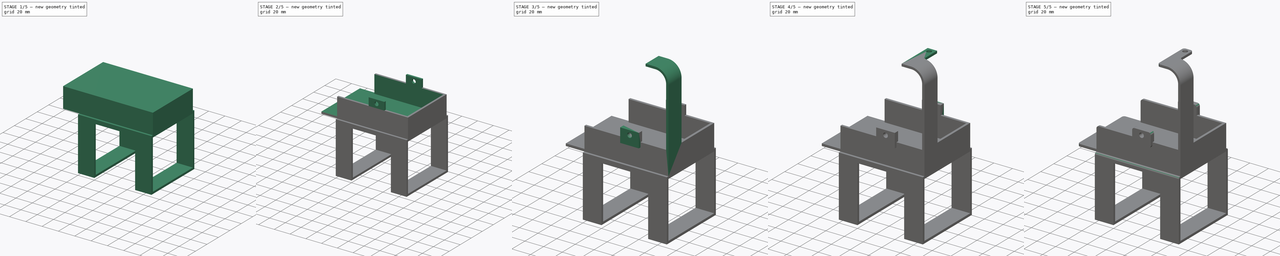
[diagram: build sequence overview — one tinted view per stage of 5, left to right]
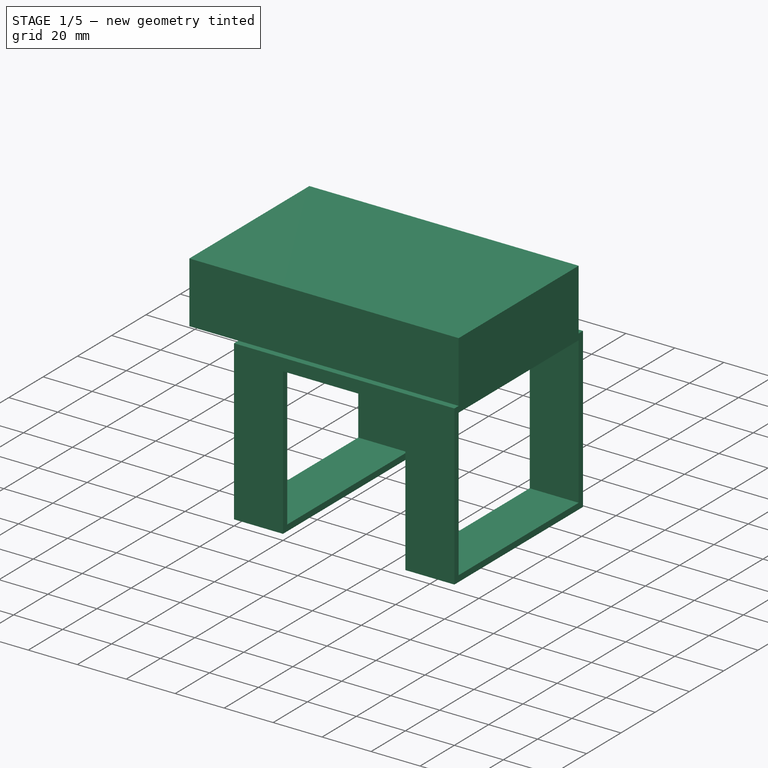
[diagram: stage 1 of 5 — iso view after this stage's code; geometry added in this stage tinted green]
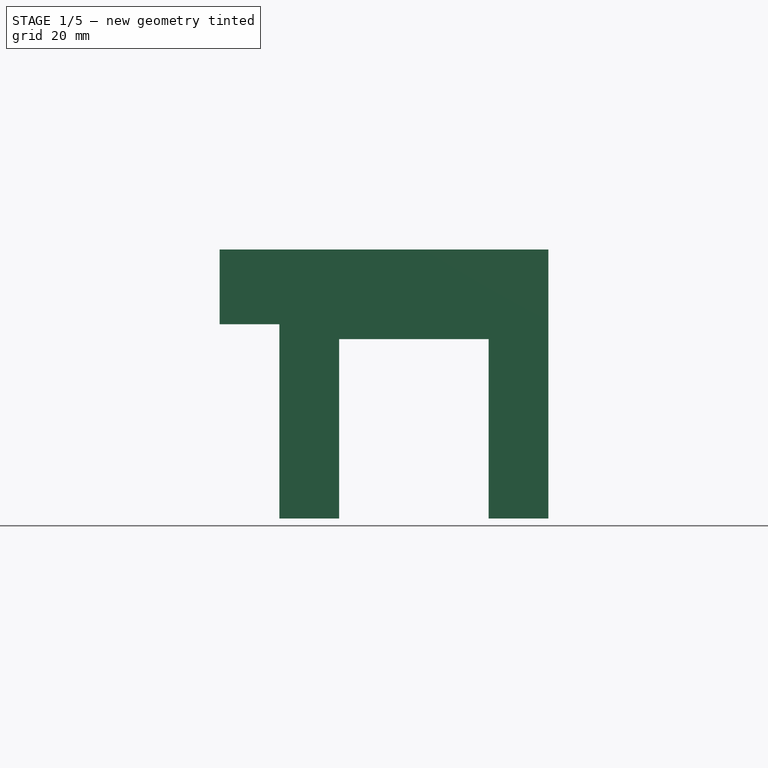
[diagram: stage 1 of 5 — front view after this stage's code; geometry added in this stage tinted green]
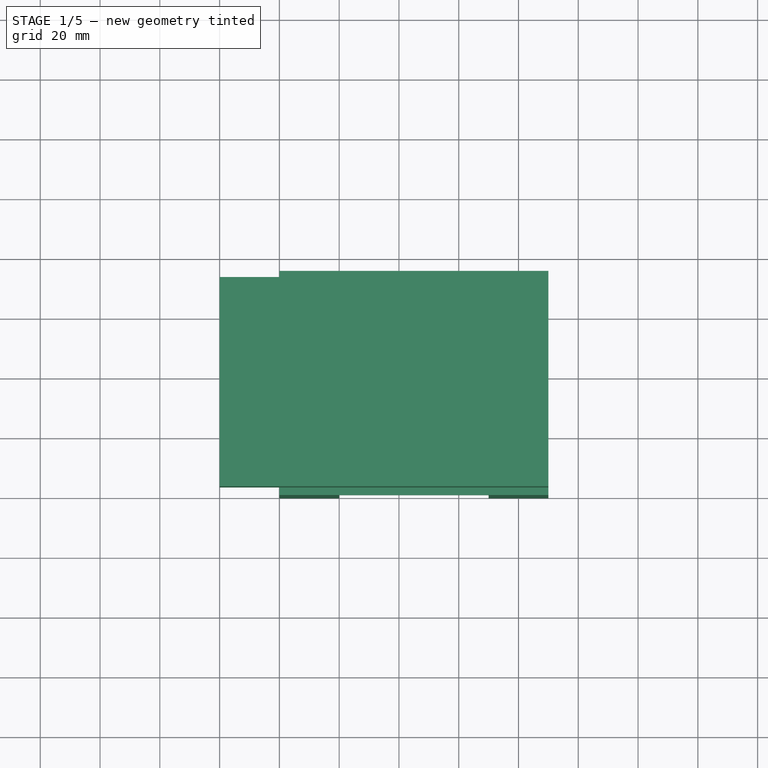
[diagram: stage 1 of 5 — top view after this stage's code; geometry added in this stage tinted green]
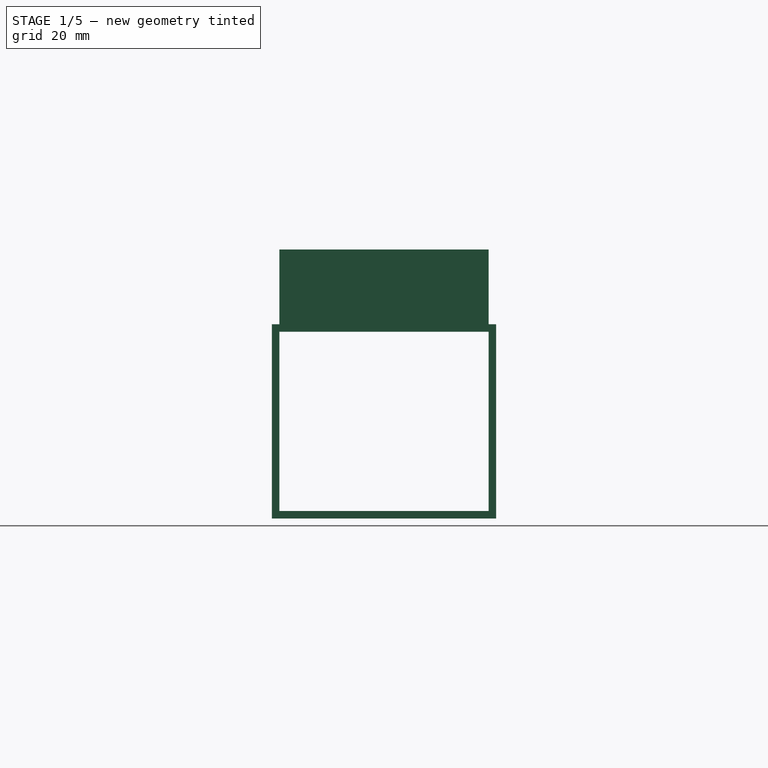
[diagram: stage 1 of 5 — right view after this stage's code; geometry added in this stage tinted green]
FCSTD DOCUMENT  (FreeCAD 1.0R39109 (Git))
Label: Gerüst-DerGerät
License: All rights reserved
LicenseURL: https://en.wikipedia.org/wiki/All_rights_reserved
objects: Sketcher::SketchObject×14, PartDesign::Pad×7, PartDesign::Pocket×7, PartDesign::Fillet×5, PartDesign::Body×1
note: 86 computed .brp shape members not serialized (recipe doc carries the construction recipe); baked Part::Feature solids carry a one-line shape summary decoded from their .brp

FEATURE [Sketcher::SketchObject] Sketch
  ArcFitTolerance = 1e-06
  AttachmentSupport = -> [YZ_Plane]
  FullyConstrained = true
  MakeInternals = false
  MapMode = 5
  Placement = pos=(0,0,0) rot=(0.57735,0.57735,0.57735;2.0944rad)
  sketch-geometry (4):
    g0: LineSegment StartX=0 StartY=0 StartZ=0 EndX=75 EndY=0 EndZ=0
    g1: LineSegment StartX=75 StartY=0 StartZ=0 EndX=75 EndY=65 EndZ=0
    g2: LineSegment StartX=75 StartY=65 StartZ=0 EndX=0 EndY=65 EndZ=0
    g3: LineSegment StartX=0 StartY=65 StartZ=0 EndX=0 EndY=0 EndZ=0
  constraints (11):
    c: Coincident(g-1,g0)
    c: PointOnObject(g0,g-1)
    c: Coincident(g0,g1)
    c: Vertical(g1)
    c: Coincident(g1,g2)
    c: PointOnObject(g2,g-2)
    c: Horizontal(g2)
    c: Coincident(g2,g3)
    c: Coincident(g3,g0)
    c: DistanceX(g0,g0) = 75
    c: DistanceY(g3,g3) = 65
FEATURE [PartDesign::Pad] Pad  label="Anfangsklotz"
  Direction = (1,0,0)
  Length = 90
  Length2 = 10
  Placement = pos=(0,0,0) rot=(1,1,1;2.0944rad)
  Profile = -> Sketch
  ReferenceAxis = -> Sketch [N_Axis]
  Refine = true
  Suppressed = false
  Type = 0
FEATURE [Sketcher::SketchObject] Sketch001
  ArcFitTolerance = 1e-06
  AttachmentSupport = -> [Pad]
  FullyConstrained = true
  MakeInternals = false
  MapMode = 5
  Placement = pos=(0,0,0) rot=(0.57735,0.57735,-0.57735;2.0944rad)
  sketch-geometry (4):
    g0: LineSegment StartX=0 StartY=20 StartZ=0 EndX=-60 EndY=20 EndZ=0
    g1: LineSegment StartX=-60 StartY=20 StartZ=0 EndX=-60 EndY=70 EndZ=0
    g2: LineSegment StartX=-60 StartY=70 StartZ=0 EndX=0 EndY=70 EndZ=0
    g3: LineSegment StartX=0 StartY=70 StartZ=0 EndX=0 EndY=20 EndZ=0
  constraints (12):
    c: PointOnObject(g0,g-2)
    c: Horizontal(g0)
    c: Coincident(g0,g1)
    c: Vertical(g1)
    c: Coincident(g1,g2)
    c: PointOnObject(g2,g-2)
    c: Horizontal(g2)
    c: Coincident(g2,g3)
    c: Coincident(g3,g0)
    c: DistanceY(g3,g3) = 50
    c: DistanceX(g2,g2) = 60
    c: Distance(g-1,g0) = 20
FEATURE [PartDesign::Pocket] Pocket  label="1. Ausschnitt"
  BaseFeature = -> Pad
  Direction = (0,1,0)
  Length = 5
  Length2 = 5
  Placement = pos=(0,0,0) rot=(1,1,1;2.0944rad)
  Profile = -> Sketch001
  ReferenceAxis = -> Sketch001 [N_Axis]
  Refine = true
  Suppressed = false
  Type = 1
FEATURE [Sketcher::SketchObject] Sketch002
  ArcFitTolerance = 1e-06
  AttachmentSupport = -> [Pocket]
  FullyConstrained = true
  MakeInternals = false
  MapMode = 5
  Placement = pos=(0,0,0) rot=(0.57735,0.57735,-0.57735;4.18879rad)
  sketch-geometry (4):
    g0: LineSegment StartX=2.5 StartY=-2.5 StartZ=0 EndX=2.5 EndY=-62.5 EndZ=0
    g1: LineSegment StartX=2.5 StartY=-62.5 StartZ=0 EndX=72.5 EndY=-62.5 EndZ=0
    g2: LineSegment StartX=72.5 StartY=-62.5 StartZ=0 EndX=72.5 EndY=-2.5 EndZ=0
    g3: LineSegment StartX=72.5 StartY=-2.5 StartZ=0 EndX=2.5 EndY=-2.5 EndZ=0
  constraints (12):
    c: Vertical(g0)
    c: Coincident(g0,g1)
    c: Horizontal(g1)
    c: Coincident(g1,g2)
    c: Vertical(g2)
    c: Coincident(g2,g3)
    c: Coincident(g3,g0)
    c: Horizontal(g3)
    c: DistanceX(g3,g3) = 70
    c: DistanceY(g2,g2) = 60
    c: Distance(g-2,g0) = 2.5
    c: Distance(g-1,g3) = 2.5
FEATURE [PartDesign::Pocket] Pocket001  label="2. Ausschnitt"
  BaseFeature = -> Pocket
  Direction = (1,0,0)
  Length = 5
  Length2 = 5
  Placement = pos=(0,0,0) rot=(1,1,1;2.0944rad)
  Profile = -> Sketch002
  ReferenceAxis = -> Sketch002 [N_Axis]
  Refine = true
  Suppressed = false
  Type = 1
FEATURE [Sketcher::SketchObject] Sketch003
  ArcFitTolerance = 1e-06
  AttachmentSupport = -> [Pocket001]
  FullyConstrained = true
  MakeInternals = false
  MapMode = 5
  Placement = pos=(0,1.43e-14,65) rot=(0,0,-1;1.5708rad)
  sketch-geometry (4):
    g0: LineSegment StartX=-72.5 StartY=-20 StartZ=0 EndX=-72.5 EndY=90 EndZ=0
    g1: LineSegment StartX=-72.5 StartY=90 StartZ=0 EndX=-2.5 EndY=90 EndZ=0
    g2: LineSegment StartX=-2.5 StartY=90 StartZ=0 EndX=-2.5 EndY=-20 EndZ=0
    g3: LineSegment StartX=-2.5 StartY=-20 StartZ=0 EndX=-72.5 EndY=-20 EndZ=0
  constraints (12):
    c: Vertical(g0)
    c: Coincident(g0,g1)
    c: Horizontal(g1)
    c: Coincident(g1,g2)
    c: Vertical(g2)
    c: Coincident(g2,g3)
    c: Coincident(g3,g0)
    c: Horizontal(g3)
    c: DistanceY(g2,g2) = 110
    c: DistanceX(g3,g3) = 70
    c: Distance(g-1,g3) = 20
    c: Distance(g-1,g2) = 2.5
FEATURE [PartDesign::Pad] Pad001  label="Kartenhalter"
  BaseFeature = -> Pocket001
  Direction = (0,0,1)
  Length = 25
  Length2 = 10
  Placement = pos=(0,0,0) rot=(1,1,1;2.0944rad)
  Profile = -> Sketch003
  ReferenceAxis = -> Sketch003 [N_Axis]
  Refine = true
  Suppressed = false
  Type = 0
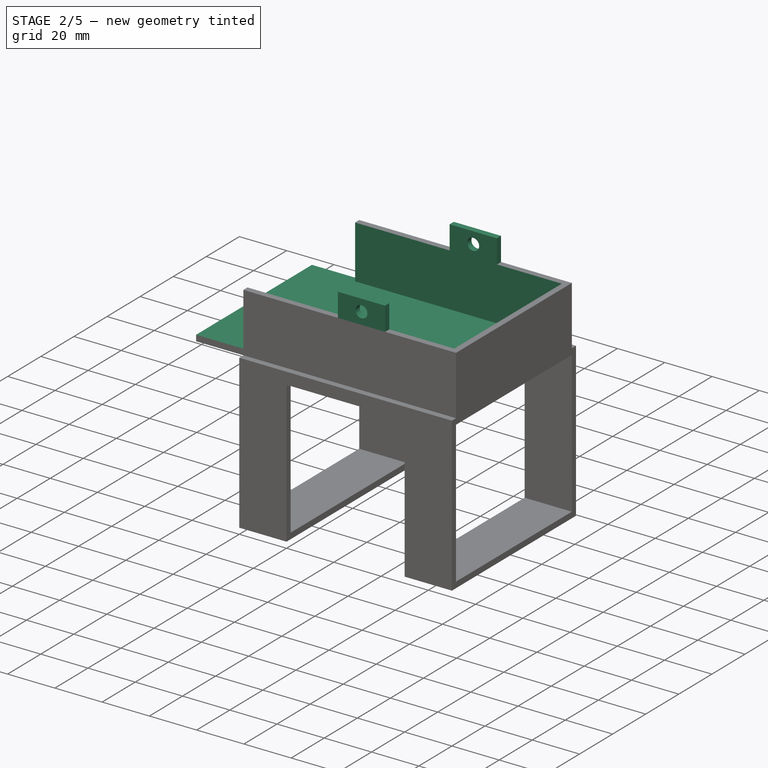
[diagram: stage 2 of 5 — iso view after this stage's code; geometry added in this stage tinted green]
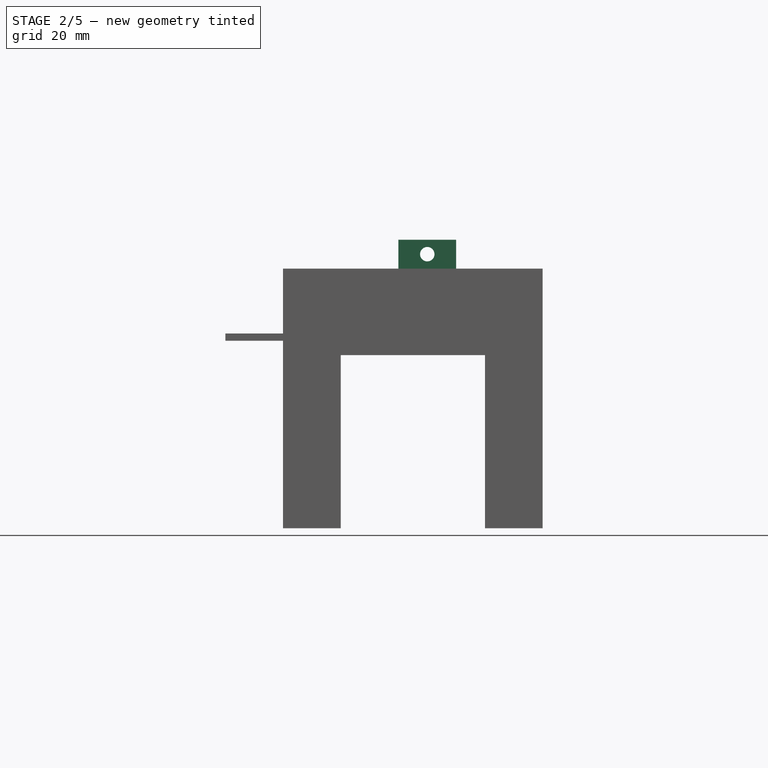
[diagram: stage 2 of 5 — front view after this stage's code; geometry added in this stage tinted green]
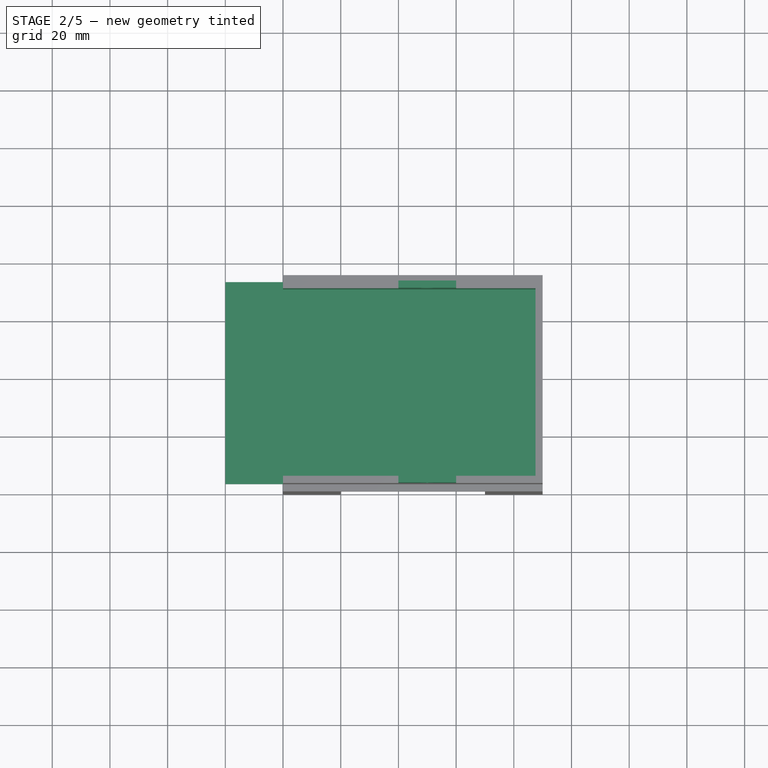
[diagram: stage 2 of 5 — top view after this stage's code; geometry added in this stage tinted green]
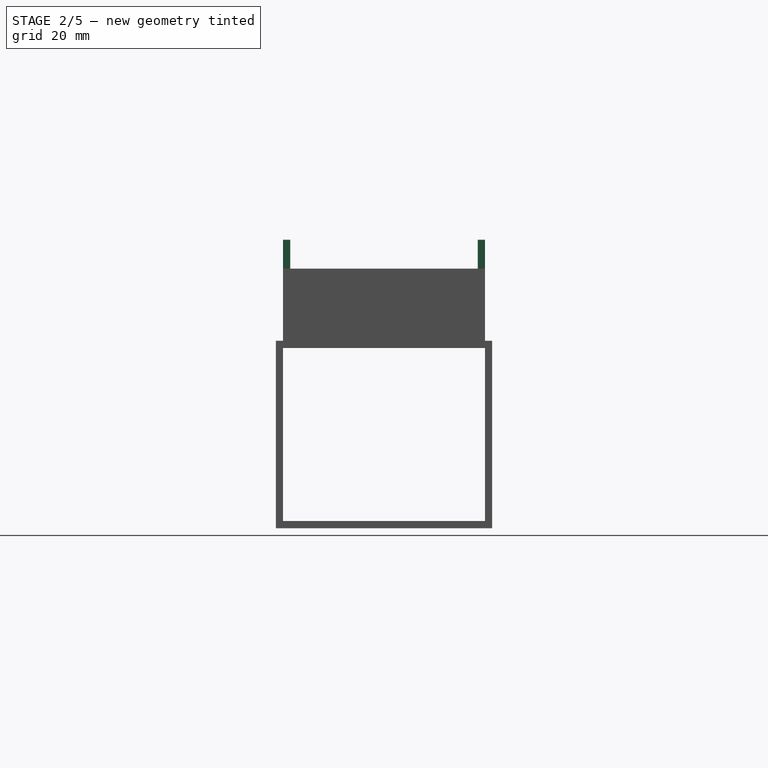
[diagram: stage 2 of 5 — right view after this stage's code; geometry added in this stage tinted green]
FEATURE [Sketcher::SketchObject] Sketch004
  ArcFitTolerance = 1e-06
  AttachmentSupport = -> [Pad001]
  FullyConstrained = true
  MakeInternals = false
  MapMode = 5
  Placement = pos=(0,0,90) rot=(0,0,-1;1.5708rad)
  sketch-geometry (4):
    g0: LineSegment StartX=-70 StartY=87.5 StartZ=0 EndX=-5 EndY=87.5 EndZ=0
    g1: LineSegment StartX=-5 StartY=87.5 StartZ=0 EndX=-5 EndY=-20 EndZ=0
    g2: LineSegment StartX=-5 StartY=-20 StartZ=0 EndX=-70 EndY=-20 EndZ=0
    g3: LineSegment StartX=-70 StartY=-20 StartZ=0 EndX=-70 EndY=87.5 EndZ=0
  constraints (12):
    c: Horizontal(g0)
    c: Coincident(g0,g1)
    c: Vertical(g1)
    c: Coincident(g1,g2)
    c: Horizontal(g2)
    c: Coincident(g2,g3)
    c: Coincident(g3,g0)
    c: Vertical(g3)
    c: DistanceY(g1,g1) = 107.5
    c: DistanceY(g1,g-1) = 20
    c: DistanceX(g2,g2) = 65
    c: Distance(g1,g-2) = 5
FEATURE [PartDesign::Pocket] Pocket002  label="1.Ausschnitt"
  BaseFeature = -> Pad001
  Direction = (0,0,-1)
  Length = 22.5
  Length2 = 5
  Placement = pos=(0,0,0) rot=(1,1,1;2.0944rad)
  Profile = -> Sketch004
  ReferenceAxis = -> Sketch004 [N_Axis]
  Refine = true
  Suppressed = false
  Type = 0
FEATURE [Sketcher::SketchObject] Sketch007
  ArcFitTolerance = 1e-06
  FullyConstrained = true
  MakeInternals = false
  MapMode = 5
  Placement = pos=(-1.155e-13,5.77e-14,65) rot=(0,0,-1;1.5708rad)
  sketch-geometry (8):
    g0: LineSegment StartX=-5 StartY=60 StartZ=0 EndX=-5 EndY=40 EndZ=0
    g1: LineSegment StartX=-70 StartY=60 StartZ=0 EndX=-72.5 EndY=60 EndZ=0
    g2: LineSegment StartX=-72.5 StartY=60 StartZ=0 EndX=-72.5 EndY=40 EndZ=0
    g3: LineSegment StartX=-72.5 StartY=40 StartZ=0 EndX=-70 EndY=40 EndZ=0
    g4: LineSegment StartX=-70 StartY=40 StartZ=0 EndX=-70 EndY=60 EndZ=0
    g5: LineSegment StartX=-5 StartY=60 StartZ=0 EndX=-2.5 EndY=60 EndZ=0
    g6: LineSegment StartX=-2.5 StartY=60 StartZ=0 EndX=-2.5 EndY=40 EndZ=0
    g7: LineSegment StartX=-2.5 StartY=40 StartZ=0 EndX=-5 EndY=40 EndZ=0
  constraints (24):
    c: Vertical(g0)
    c: Coincident(g1,g2)
    c: Vertical(g2)
    c: Coincident(g2,g3)
    c: Horizontal(g3)
    c: Coincident(g3,g4)
    c: Coincident(g4,g1)
    c: Vertical(g4)
    c: DistanceY(g0,g0) = 20
    c: DistanceX(g1,g1) = 2.5
    c: DistanceY(g2,g2) = 20
    c: Distance(g0,g4) = 65
    c: Coincident(g0,g5)
    c: Horizontal(g5)
    c: Coincident(g5,g6)
    c: Vertical(g6)
    c: Coincident(g6,g7)
    c: Coincident(g7,g0)
    c: Horizontal(g7)
    c: Distance(g5,g5) = 2.5
    c: Distance(g-2,g0) = 5
    c: DistanceY(g-1,g0) = 40
    c: Distance(g-1,g3) = 40
    c: Horizontal(g1)
FEATURE [PartDesign::Pad] Pad002  label="Motor-erhöhung"
  BaseFeature = -> Pocket002
  Direction = (-1.8e-15,0,1)
  Length = 35
  Length2 = 10
  Placement = pos=(0,0,0) rot=(1,1,1;2.0944rad)
  Profile = -> Sketch007
  ReferenceAxis = -> Sketch007 [N_Axis]
  Refine = true
  Suppressed = false
  Type = 0
FEATURE [Sketcher::SketchObject] Sketch008
  ArcFitTolerance = 1e-06
  AttachmentSupport = -> [Pad002]
  ExternalGeometry = -> [Pad002]
  FullyConstrained = true
  MakeInternals = false
  MapMode = 5
  Placement = pos=(1.65e-14,75,0) rot=(0.57735,0.57735,0.57735;4.18879rad)
  sketch-geometry (2):
    g0: Circle CenterX=95 CenterY=50 CenterZ=0 NormalX=0 NormalY=0 NormalZ=1 AngleXU=0 Radius=2.5
    g1: LineSegment [constr] StartX=90 StartY=60 StartZ=0 EndX=100 EndY=40 EndZ=0
  constraints (4):
    c: Diameter(g0) = 5
    c: Coincident(g1,g-3)
    c: Coincident(g1,g-4)
    c: Symmetric(g1,g1,g0)
FEATURE [PartDesign::Pocket] Pocket004  label="Motor-LochInErhöhung"
  BaseFeature = -> Pad002
  Direction = (0,-1,0)
  Length = 5
  Length2 = 5
  Placement = pos=(0,0,0) rot=(1,1,1;2.0944rad)
  Profile = -> Sketch008
  ReferenceAxis = -> Sketch008 [N_Axis]
  Refine = true
  Suppressed = false
  Type = 1
FEATURE [Sketcher::SketchObject] Sketch009
  ArcFitTolerance = 1e-06
  AttachmentSupport = -> [Pocket004]
  FullyConstrained = true
  MakeInternals = false
  MapMode = 5
  Placement = pos=(0,2.5,0) rot=(0.57735,0.57735,-0.57735;2.0944rad)
  sketch-geometry (4):
    g0: LineSegment StartX=-90 StartY=0 StartZ=0 EndX=-67.5 EndY=0 EndZ=0
    g1: LineSegment StartX=-67.5 StartY=0 StartZ=0 EndX=-67.5 EndY=-20 EndZ=0
    g2: LineSegment StartX=-67.5 StartY=-20 StartZ=0 EndX=-90 EndY=-20 EndZ=0
    g3: LineSegment StartX=-90 StartY=-20 StartZ=0 EndX=-90 EndY=0 EndZ=0
  constraints (12):
    c: PointOnObject(g0,g-1)
    c: PointOnObject(g0,g-1)
    c: Coincident(g0,g1)
    c: Vertical(g1)
    c: Coincident(g1,g2)
    c: Horizontal(g2)
    c: Coincident(g2,g3)
    c: Coincident(g3,g0)
    c: Vertical(g3)
    c: DistanceX(g2,g2) = 22.5
    c: DistanceY(g3,g3) = 20
    c: Distance(g-1,g1) = 67.5
FEATURE [PartDesign::Pocket] Pocket005  label="Kartenhalterung-Aussparung"
  BaseFeature = -> Pocket004
  Direction = (0,1,0)
  Length = 5
  Length2 = 5
  Placement = pos=(0,0,0) rot=(1,1,1;2.0944rad)
  Profile = -> Sketch009
  ReferenceAxis = -> Sketch009 [N_Axis]
  Refine = true
  Suppressed = false
  Type = 1
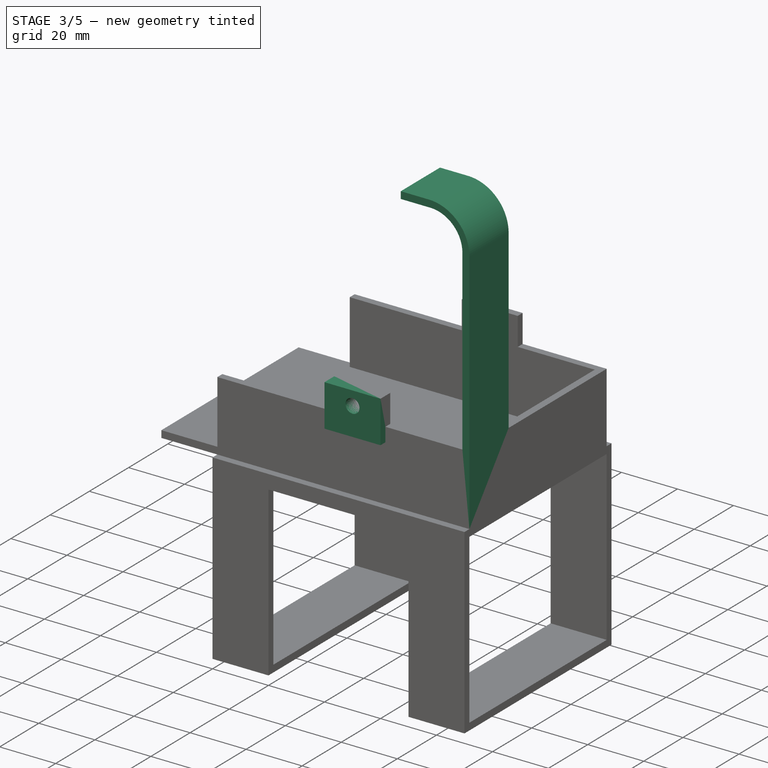
[diagram: stage 3 of 5 — iso view after this stage's code; geometry added in this stage tinted green]
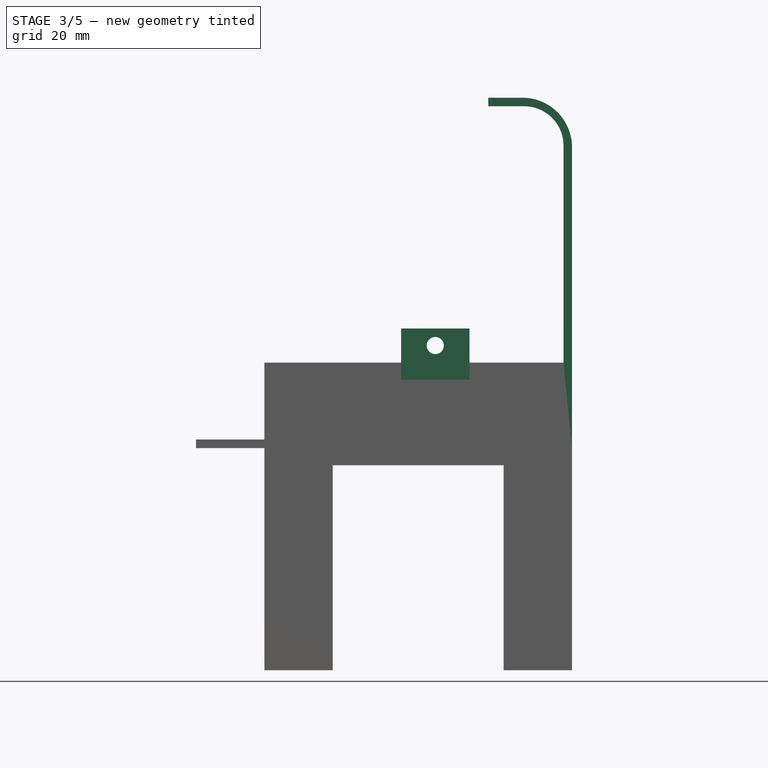
[diagram: stage 3 of 5 — front view after this stage's code; geometry added in this stage tinted green]
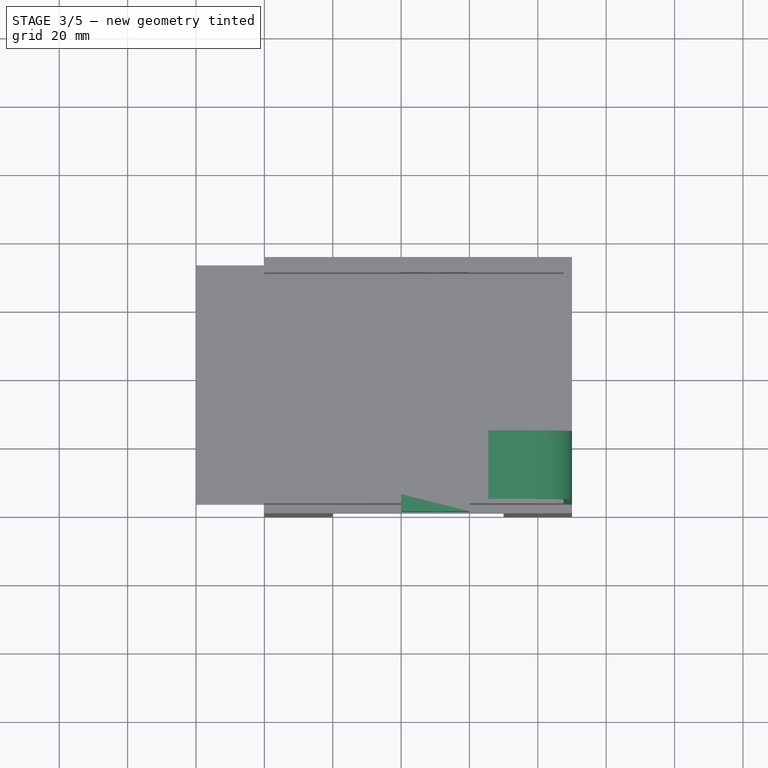
[diagram: stage 3 of 5 — top view after this stage's code; geometry added in this stage tinted green]
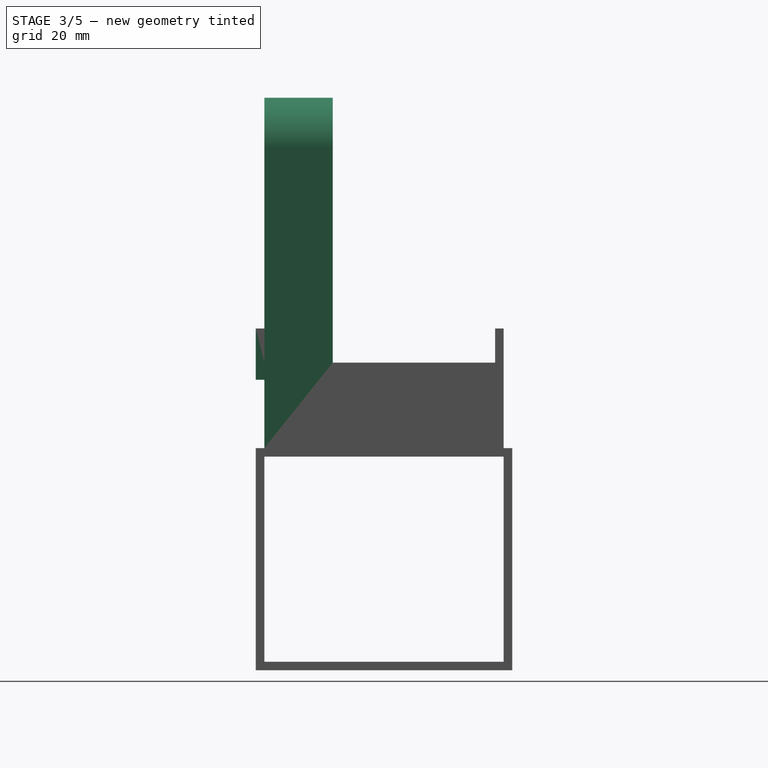
[diagram: stage 3 of 5 — right view after this stage's code; geometry added in this stage tinted green]
FEATURE [Sketcher::SketchObject] Sketch011
  ArcFitTolerance = 1e-06
  FullyConstrained = false
  MakeInternals = false
  MapMode = 5
  Placement = pos=(8.48e-14,72.5,-6.02e-14) rot=(0.57735,0.57735,0.57735;4.18879rad)
  sketch-geometry (12):
    g0: LineSegment StartX=90 StartY=90 StartZ=0 EndX=153 EndY=90 EndZ=0
    g1: ArcOfCircle CenterX=153 CenterY=75.5 CenterZ=0 NormalX=0 NormalY=0 NormalZ=1 AngleXU=0 Radius=14.5 StartAngle=0 EndAngle=1.5708
    g2: LineSegment StartX=167.5 StartY=75.5 StartZ=0 EndX=167.5 EndY=65.5 EndZ=0
    g3: LineSegment StartX=167.5 StartY=65.5 StartZ=0 EndX=165 EndY=65.5 EndZ=0
    g4: LineSegment StartX=165 StartY=65.5 StartZ=0 EndX=165 EndY=76 EndZ=0
    g5: ArcOfCircle CenterX=153.5 CenterY=76 CenterZ=0 NormalX=0 NormalY=0 NormalZ=1 AngleXU=0 Radius=11.5 StartAngle=5e-16 EndAngle=1.5708
    g6: LineSegment StartX=153.5 StartY=87.5 StartZ=0 EndX=90 EndY=87.5 EndZ=0
    g7: LineSegment StartX=90 StartY=87.5 StartZ=0 EndX=90 EndY=90 EndZ=0
    g8: LineSegment [constr] StartX=153 StartY=90 StartZ=0 EndX=153 EndY=64.8017 EndZ=0
    g9: LineSegment [constr] StartX=167.5 StartY=75.5 StartZ=0 EndX=144.318 EndY=75.5 EndZ=0
    g10: LineSegment [constr] StartX=153.5 StartY=87.5 StartZ=0 EndX=153.5 EndY=68.109 EndZ=0
    g11: LineSegment [constr] StartX=165 StartY=76 StartZ=0 EndX=145.29 EndY=76 EndZ=0
  constraints (29):
    c: Coincident(g-3,g0)
    c: Horizontal(g0)
    c: Tangent(g0,g1) = 1.5708
    c: Tangent(g1,g2) = 1.5708
    c: Coincident(g2,g3)
    c: Horizontal(g3)
    c: Coincident(g3,g4)
    c: Vertical(g4)
    c: Tangent(g4,g5) = -1.5708
    c: PointOnObject(g6,g-3)
    c: Horizontal(g6)
    c: Coincident(g6,g7)
    c: Coincident(g7,g0)
    c: Tangent(g5,g6) = -1.5708
    c: Distance(g3,g3) = 2.5
    c: DistanceY(g7,g7) = 2.5
    c: Vertical(g2)
    c: Distance(g-3,g4) = 75
    c: Coincident(g8,g0)
    c: Vertical(g8)
    c: Coincident(g9,g1)
    c: Horizontal(g9)
    c: DistanceY(g1,g0) = 14.5
    c: Coincident(g10,g5)
    c: Vertical(g10)
    c: Coincident(g11,g4)
    c: Horizontal(g11)
    c: DistanceY(g5,g5) = 11.5
    c: DistanceY(g2,g2) = 10
FEATURE [Sketcher::SketchObject] Sketch012
  ArcFitTolerance = 1e-06
  FullyConstrained = true
  MakeInternals = false
  MapMode = 5
  Placement = pos=(0,2.5,0) rot=(0.57735,0.57735,-0.57735;2.0944rad)
  sketch-geometry (5):
    g0: LineSegment StartX=-100 StartY=60 StartZ=0 EndX=-100 EndY=40 EndZ=0
    g1: Circle CenterX=-95 CenterY=50 CenterZ=0 NormalX=0 NormalY=0 NormalZ=1 AngleXU=0 Radius=2.5
    g2: LineSegment StartX=-100 StartY=40 StartZ=0 EndX=-85 EndY=40 EndZ=0
    g3: LineSegment StartX=-85 StartY=40 StartZ=0 EndX=-85 EndY=60 EndZ=0
    g4: LineSegment StartX=-85 StartY=60 StartZ=0 EndX=-100 EndY=60 EndZ=0
  constraints (14):
    c: Coincident(g1,g-7)
    c: Equal(g1,g-7)
    c: Coincident(g0,g2)
    c: Horizontal(g2)
    c: Coincident(g2,g3)
    c: Vertical(g3)
    c: Coincident(g3,g4)
    c: Coincident(g4,g0)
    c: Horizontal(g4)
    c: Horizontal(g-3,g0)
    c: Vertical(g-3,g0)
    c: Horizontal(g-6,g0)
    c: Vertical(g-6,g0)
    c: DistanceX(g2,g2) = 15
FEATURE [Sketcher::SketchObject] Sketch013
  ArcFitTolerance = 1e-06
  FullyConstrained = true
  MakeInternals = false
  MapMode = 5
  Placement = pos=(8.19e-14,72.5,6.09e-14) rot=(0.57735,0.57735,0.57735;4.18879rad)
  sketch-geometry (5):
    g0: LineSegment StartX=100 StartY=60 StartZ=0 EndX=100 EndY=40 EndZ=0
    g1: LineSegment StartX=100 StartY=40 StartZ=0 EndX=85 EndY=40 EndZ=0
    g2: LineSegment StartX=85 StartY=40 StartZ=0 EndX=85 EndY=60 EndZ=0
    g3: LineSegment StartX=85 StartY=60 StartZ=0 EndX=100 EndY=60 EndZ=0
    g4: Circle CenterX=95 CenterY=50 CenterZ=0 NormalX=0 NormalY=0 NormalZ=1 AngleXU=0 Radius=2.5
  constraints (12):
    c: Coincident(g0,g-3)
    c: Coincident(g0,g-4)
    c: Coincident(g0,g1)
    c: Horizontal(g1)
    c: Coincident(g1,g2)
    c: Vertical(g2)
    c: Coincident(g2,g3)
    c: Coincident(g3,g0)
    c: Horizontal(g3)
    c: DistanceX(g1,g1) = 15
    c: Coincident(g4,g-5)
    c: Equal(g4,g-5)
FEATURE [PartDesign::Pad] Pad005
  BaseFeature = -> Pocket005
  Direction = (9e-16,1,1e-16)
  Length = 70
  Length2 = 10
  Placement = pos=(0,0,0) rot=(1,1,1;2.0944rad)
  Profile = -> Sketch011
  ReferenceAxis = -> Sketch011 [N_Axis]
  Refine = true
  Reversed = true
  Suppressed = false
  Type = 0
FEATURE [Sketcher::SketchObject] Sketch014
  ArcFitTolerance = 1e-06
  FullyConstrained = false
  MakeInternals = false
  MapMode = 5
  Placement = pos=(8.48e-14,72.5,-6.02e-14) rot=(0.57735,0.57735,0.57735;4.18879rad)
  sketch-geometry (12):
    g0: LineSegment StartX=90 StartY=90 StartZ=0 EndX=153 EndY=90 EndZ=0
    g1: ArcOfCircle CenterX=153 CenterY=75.5 CenterZ=0 NormalX=0 NormalY=0 NormalZ=1 AngleXU=0 Radius=14.5 StartAngle=0 EndAngle=1.5708
    g2: LineSegment StartX=167.5 StartY=75.5 StartZ=0 EndX=167.5 EndY=65.5 EndZ=0
    g3: LineSegment StartX=167.5 StartY=65.5 StartZ=0 EndX=165 EndY=65.5 EndZ=0
    g4: LineSegment StartX=165 StartY=65.5 StartZ=0 EndX=165 EndY=76 EndZ=0
    g5: ArcOfCircle CenterX=153.5 CenterY=76 CenterZ=0 NormalX=0 NormalY=0 NormalZ=1 AngleXU=0 Radius=11.5 StartAngle=5e-16 EndAngle=1.5708
    g6: LineSegment StartX=153.5 StartY=87.5 StartZ=0 EndX=90 EndY=87.5 EndZ=0
    g7: LineSegment StartX=90 StartY=87.5 StartZ=0 EndX=90 EndY=90 EndZ=0
    g8: LineSegment [constr] StartX=153 StartY=90 StartZ=0 EndX=153 EndY=64.8017 EndZ=0
    g9: LineSegment [constr] StartX=167.5 StartY=75.5 StartZ=0 EndX=144.318 EndY=75.5 EndZ=0
    g10: LineSegment [constr] StartX=153.5 StartY=87.5 StartZ=0 EndX=153.5 EndY=68.109 EndZ=0
    g11: LineSegment [constr] StartX=165 StartY=76 StartZ=0 EndX=145.29 EndY=76 EndZ=0
  constraints (29):
    c: Coincident(g-3,g0)
    c: Horizontal(g0)
    c: Tangent(g0,g1) = 1.5708
    c: Tangent(g1,g2) = 1.5708
    c: Coincident(g2,g3)
    c: Horizontal(g3)
    c: Coincident(g3,g4)
    c: Vertical(g4)
    c: Tangent(g4,g5) = -1.5708
    c: PointOnObject(g6,g-3)
    c: Horizontal(g6)
    c: Coincident(g6,g7)
    c: Coincident(g7,g0)
    c: Tangent(g5,g6) = -1.5708
    c: Distance(g3,g3) = 2.5
    c: DistanceY(g7,g7) = 2.5
    c: Vertical(g2)
    c: Distance(g-3,g4) = 75
    c: Coincident(g8,g0)
    c: Vertical(g8)
    c: Coincident(g9,g1)
    c: Horizontal(g9)
    c: DistanceY(g1,g0) = 14.5
    c: Coincident(g10,g5)
    c: Vertical(g10)
    c: Coincident(g11,g4)
    c: Horizontal(g11)
    c: DistanceY(g5,g5) = 11.5
    c: DistanceY(g2,g2) = 10
FEATURE [PartDesign::Pocket] Pocket006
  BaseFeature = -> Pad005
  Direction = (-9e-16,-1,-1e-16)
  Length = 50
  Length2 = 5
  Placement = pos=(0,0,0) rot=(1,1,1;2.0944rad)
  Profile = -> Sketch014
  ReferenceAxis = -> Sketch014 [N_Axis]
  Refine = true
  Suppressed = false
  Type = 0
FEATURE [PartDesign::Pad] Pad006
  BaseFeature = -> Pocket006
  Direction = (0,-1,0)
  Length = 2.5
  Length2 = 10
  Placement = pos=(0,0,0) rot=(1,1,1;2.0944rad)
  Profile = -> Sketch012
  ReferenceAxis = -> Sketch012 [N_Axis]
  Refine = true
  Suppressed = false
  Type = 0
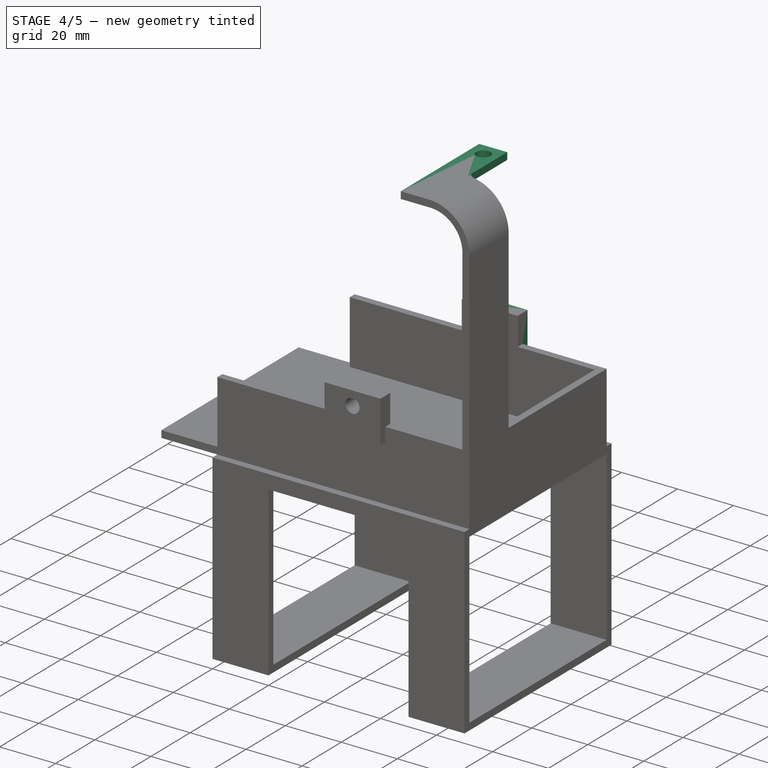
[diagram: stage 4 of 5 — iso view after this stage's code; geometry added in this stage tinted green]
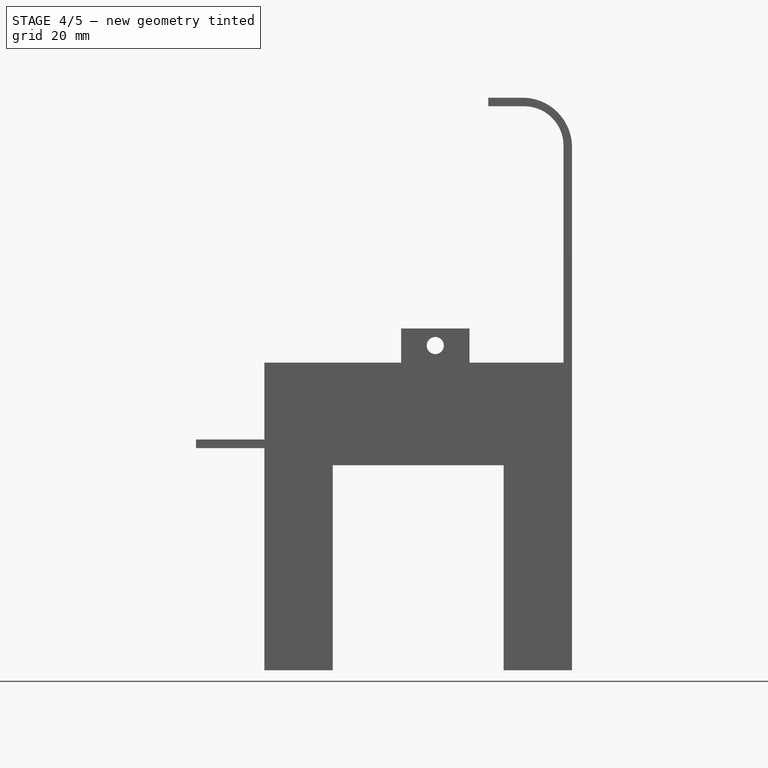
[diagram: stage 4 of 5 — front view after this stage's code; geometry added in this stage tinted green]
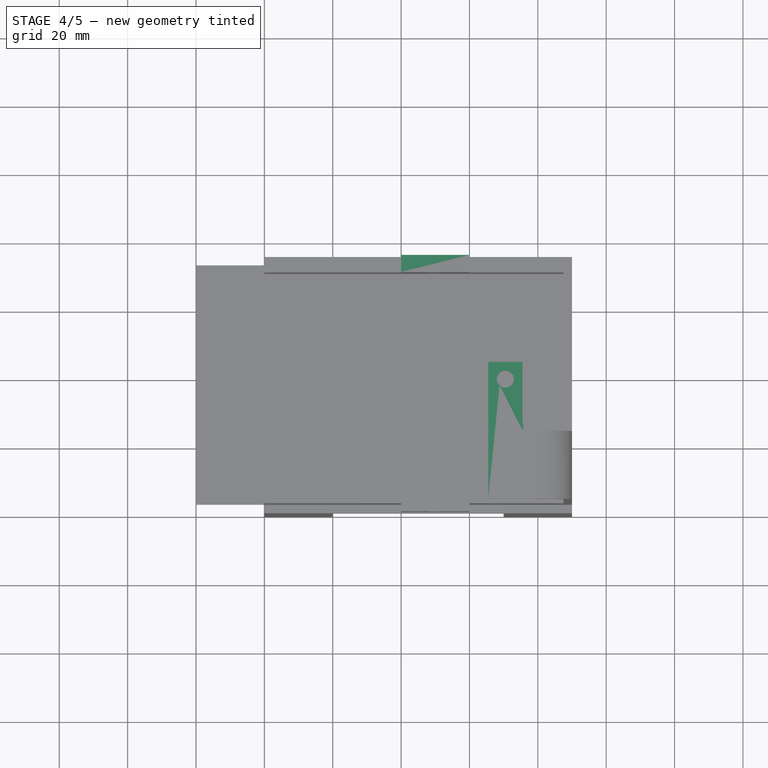
[diagram: stage 4 of 5 — top view after this stage's code; geometry added in this stage tinted green]
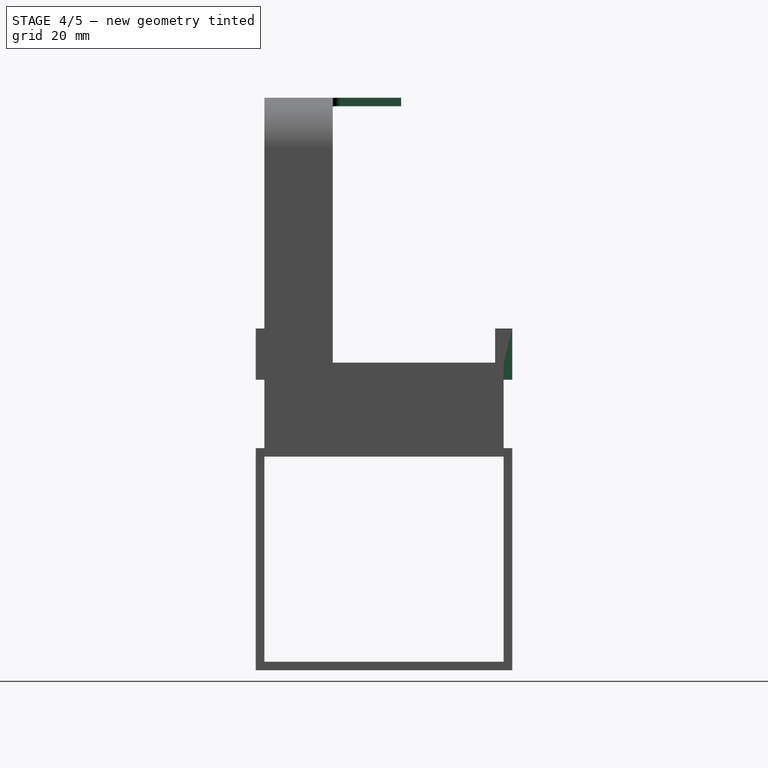
[diagram: stage 4 of 5 — right view after this stage's code; geometry added in this stage tinted green]
FEATURE [PartDesign::Pad] Pad007
  BaseFeature = -> Pad006
  Direction = (1e-15,1,1e-16)
  Length = 2.5
  Length2 = 10
  Placement = pos=(0,0,0) rot=(1,1,1;2.0944rad)
  Profile = -> Sketch013
  ReferenceAxis = -> Sketch013 [N_Axis]
  Refine = true
  Suppressed = false
  Type = 0
FEATURE [Sketcher::SketchObject] Sketch015
  ArcFitTolerance = 1e-06
  AttachmentSupport = -> [Pad007]
  ExternalGeometry = -> [Pad007]
  FullyConstrained = true
  MakeInternals = false
  MapMode = 5
  Placement = pos=(2.61e-14,22.5,0) rot=(0.57735,0.57735,0.57735;4.18879rad)
  sketch-geometry (4):
    g0: LineSegment StartX=167.5 StartY=75.5 StartZ=0 EndX=165 EndY=75.5 EndZ=0
    g1: LineSegment StartX=165 StartY=75.5 StartZ=0 EndX=165 EndY=65.5 EndZ=0
    g2: LineSegment StartX=165 StartY=65.5 StartZ=0 EndX=167.5 EndY=65.5 EndZ=0
    g3: LineSegment StartX=167.5 StartY=65.5 StartZ=0 EndX=167.5 EndY=75.5 EndZ=0
  constraints (9):
    c: Coincident(g0,g-3)
    c: Horizontal(g0)
    c: Coincident(g0,g1)
    c: Coincident(g1,g-5)
    c: Vertical(g1)
    c: Coincident(g1,g2)
    c: Coincident(g2,g-4)
    c: Coincident(g2,g3)
    c: Coincident(g3,g0)
FEATURE [PartDesign::Pad] Pad008
  BaseFeature = -> Pad007
  Direction = (1e-15,1,1e-16)
  Length = 20
  Length2 = 10
  Placement = pos=(0,0,0) rot=(1,1,1;2.0944rad)
  Profile = -> Sketch015
  ReferenceAxis = -> Sketch015 [N_Axis]
  Refine = true
  Suppressed = false
  Type = 0
FEATURE [Sketcher::SketchObject] Sketch016
  ArcFitTolerance = 1e-06
  AttachmentSupport = -> [Pad008]
  ExternalGeometry = -> [Pad008]
  FullyConstrained = false
  MakeInternals = false
  MapMode = 5
  Placement = pos=(4.575e-13,-1.401e-13,167.5) rot=(0,0,-1;1.5708rad)
  sketch-geometry (7):
    g0: LineSegment [constr] StartX=-75 StartY=60 StartZ=0 EndX=-8.53e-14 EndY=90 EndZ=0
    g1: LineSegment [constr] StartX=-75 StartY=90 StartZ=0 EndX=-1.279e-13 EndY=60 EndZ=0
    g2: LineSegment [constr] StartX=-37.5 StartY=75 StartZ=0 EndX=-37.5 EndY=61.3786 EndZ=0
    g3: LineSegment [constr] StartX=-42.5 StartY=65.5 StartZ=0 EndX=-2.5 EndY=75.5 EndZ=0
    g4: LineSegment [constr] StartX=-2.5 StartY=65.5 StartZ=0 EndX=-42.5 EndY=75.5 EndZ=0
    g5: LineSegment [constr] StartX=-22.5 StartY=70.5 StartZ=0 EndX=-52.5 EndY=70.5 EndZ=0
    g6: Circle CenterX=-37.5 CenterY=70.5 CenterZ=0 NormalX=0 NormalY=0 NormalZ=1 AngleXU=0 Radius=2.5
  constraints (15):
    c: Coincident(g0,g-6)
    c: Coincident(g0,g-3)
    c: Coincident(g1,g-4)
    c: Coincident(g1,g-5)
    c: Symmetric(g0,g0,g2)
    c: Vertical(g2)
    c: Coincident(g3,g-10)
    c: Coincident(g3,g-7)
    c: Coincident(g4,g-8)
    c: Coincident(g4,g-9)
    c: Symmetric(g4,g4,g5)
    c: Horizontal(g5)
    c: Diameter(g6) = 5
    c: PointOnObject(g6,g2)
    c: Symmetric(g5,g5,g6)
FEATURE [PartDesign::Pocket] Pocket007
  BaseFeature = -> Pad008
  Direction = (-2.7e-15,0,-1)
  Length = 2.5
  Length2 = 5
  Placement = pos=(0,0,0) rot=(1,1,1;2.0944rad)
  Profile = -> Sketch016
  ReferenceAxis = -> Sketch016 [N_Axis]
  Refine = true
  Suppressed = false
  Type = 0
FEATURE [PartDesign::Fillet] Fillet
  Base = -> Pocket007 [Edge87]
  BaseFeature = -> Pocket007
  Placement = pos=(0,0,0) rot=(1,1,1;2.0944rad)
  Radius = 2.5
  Refine = true
  SupportTransform = false
  Suppressed = false
  UseAllEdges = false
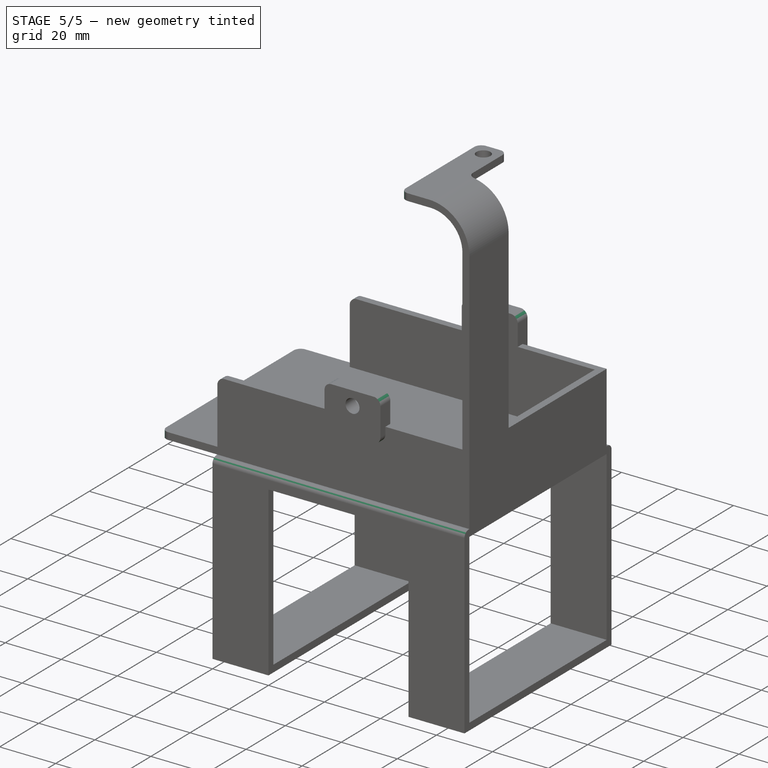
[diagram: stage 5 of 5 — iso view after this stage's code; geometry added in this stage tinted green]
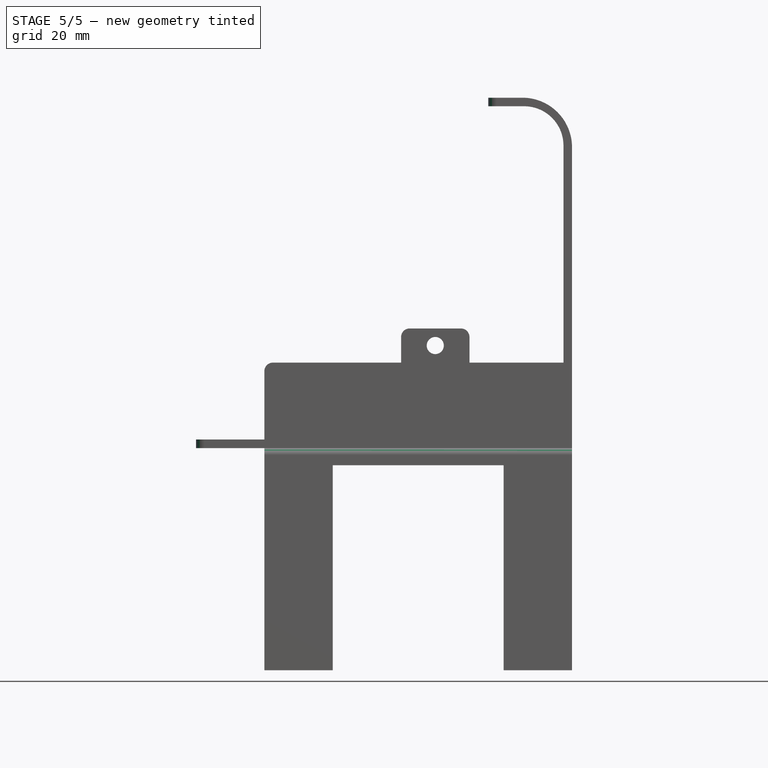
[diagram: stage 5 of 5 — front view after this stage's code; geometry added in this stage tinted green]
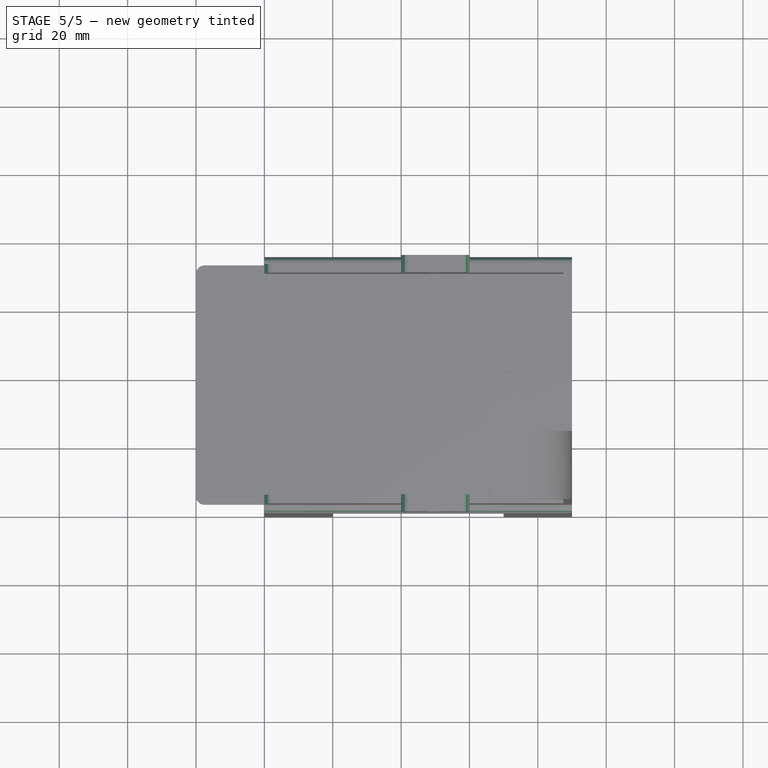
[diagram: stage 5 of 5 — top view after this stage's code; geometry added in this stage tinted green]
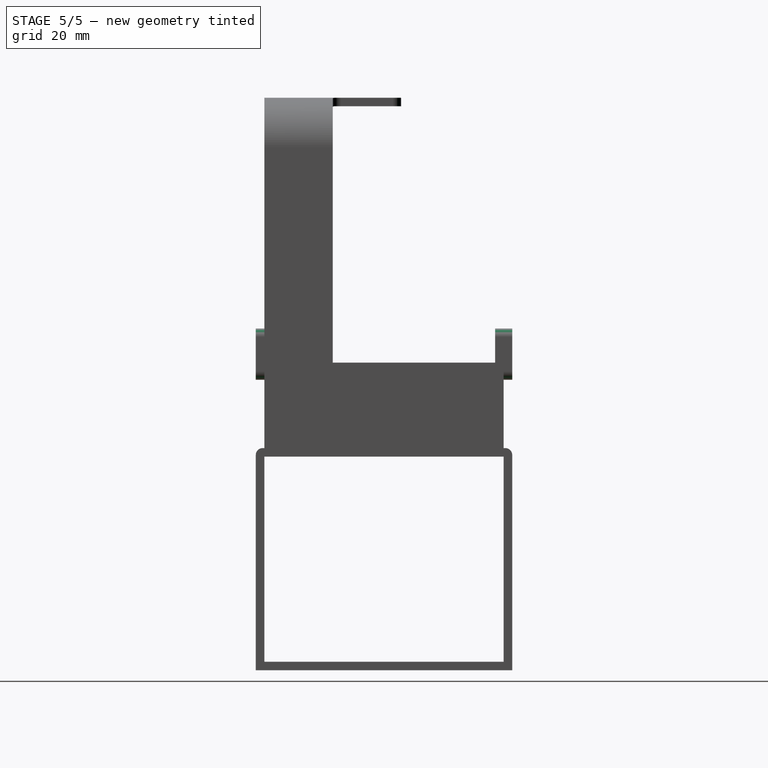
[diagram: stage 5 of 5 — right view after this stage's code; geometry added in this stage tinted green]
FEATURE [PartDesign::Fillet] Fillet001
  Base = -> Fillet [Edge56,Edge103,Edge45]
  BaseFeature = -> Fillet
  Placement = pos=(0,0,0) rot=(1,1,1;2.0944rad)
  Radius = 2.5
  Refine = true
  SupportTransform = false
  Suppressed = false
  UseAllEdges = false
FEATURE [PartDesign::Fillet] Fillet002
  Base = -> Fillet001 [Edge159,Edge163,Edge152,Edge150,Edge82,Edge73,Edge77,Edge71]
  BaseFeature = -> Fillet001
  Placement = pos=(0,0,0) rot=(1,1,1;2.0944rad)
  Radius = 2.5
  Refine = true
  SupportTransform = false
  Suppressed = false
  UseAllEdges = false
FEATURE [PartDesign::Fillet] Fillet003
  Base = -> Fillet002 [Edge125,Edge77,Edge16,Edge54]
  BaseFeature = -> Fillet002
  Placement = pos=(0,0,0) rot=(1,1,1;2.0944rad)
  Radius = 2.5
  Refine = true
  SupportTransform = false
  Suppressed = false
  UseAllEdges = false
FEATURE [PartDesign::Fillet] Fillet004
  Base = -> Fillet003 [Edge151,Edge57]
  BaseFeature = -> Fillet003
  Placement = pos=(0,0,0) rot=(1,1,1;2.0944rad)
  Radius = 2
  Refine = true
  SupportTransform = false
  Suppressed = false
  UseAllEdges = false
FEATURE [PartDesign::Body] Body  label="Körper"
  AllowCompound = false
  Group = -> [Sketch,Pad,Sketch001,Pocket,Sketch002,Pocket001,Sketch003,Pad001,Sketch004,Pocket002,Sketch007,Pad002,Sketch008,Pocket004,Sketch009,Pocket005,Sketch011,Sketch012,Sketch013,Pad005,Sketch014,Pocket006,Pad006,Pad007,Sketch015,Pad008,Sketch016,Pocket007,Fillet,Fillet001,Fillet002,Fillet003,Fillet004]
  Origin = -> Origin
  Tip = -> Fillet004
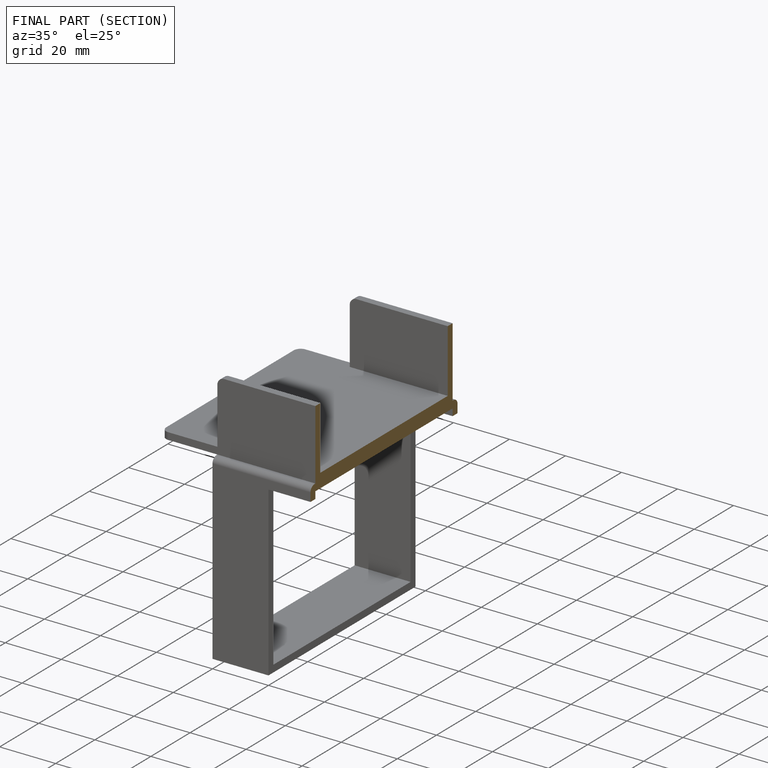
[diagram: finished part — half-section view (interior)]
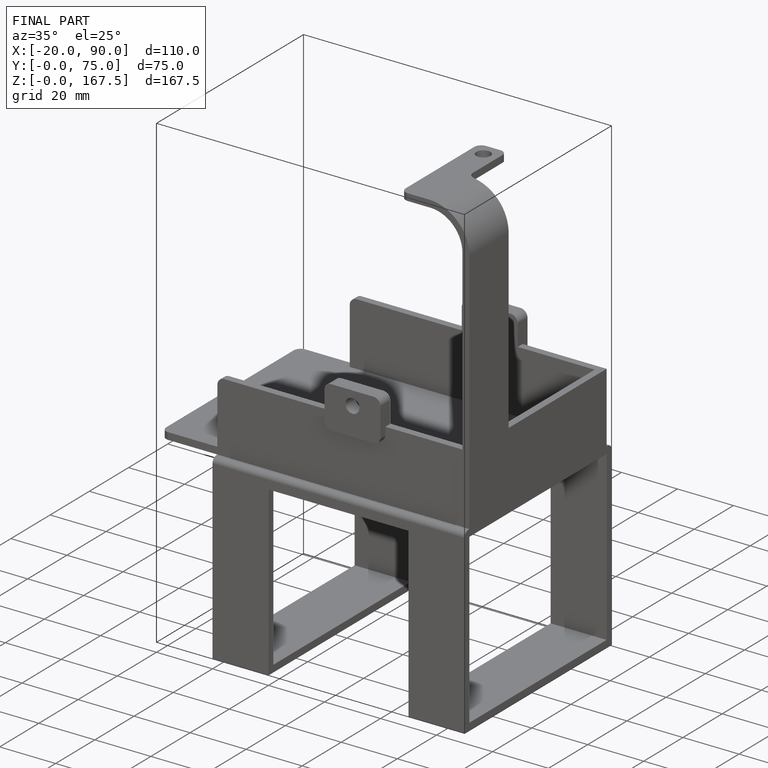
[diagram: finished part — iso view with bounding-box wireframe]
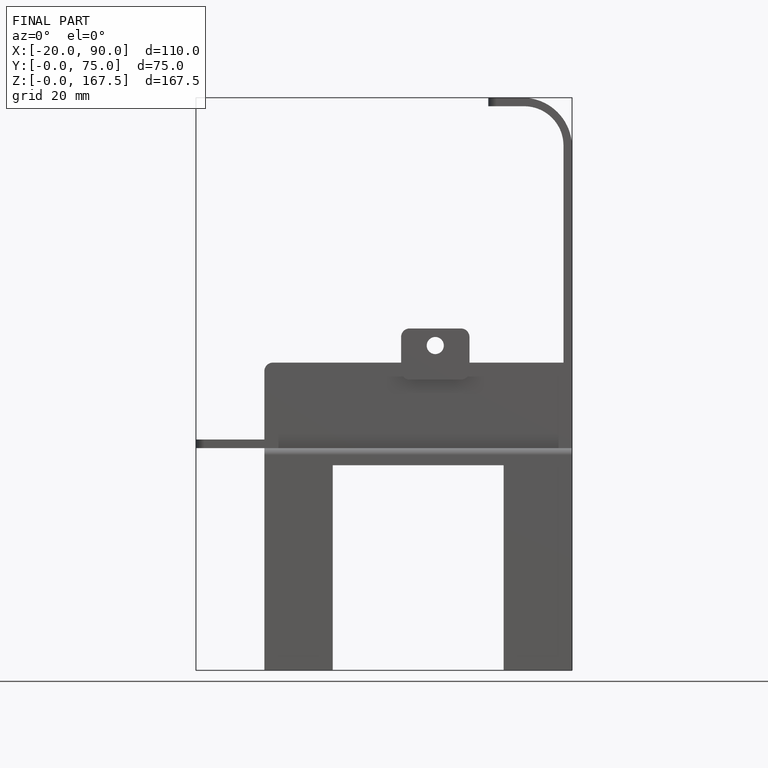
[diagram: finished part — front view with bounding-box wireframe]
